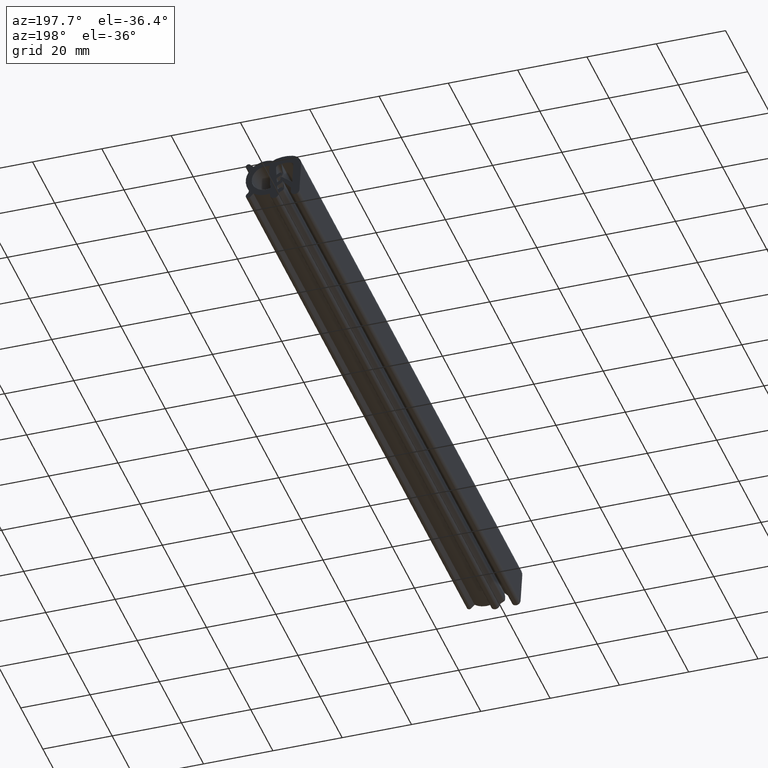
[diagram: clean part render]
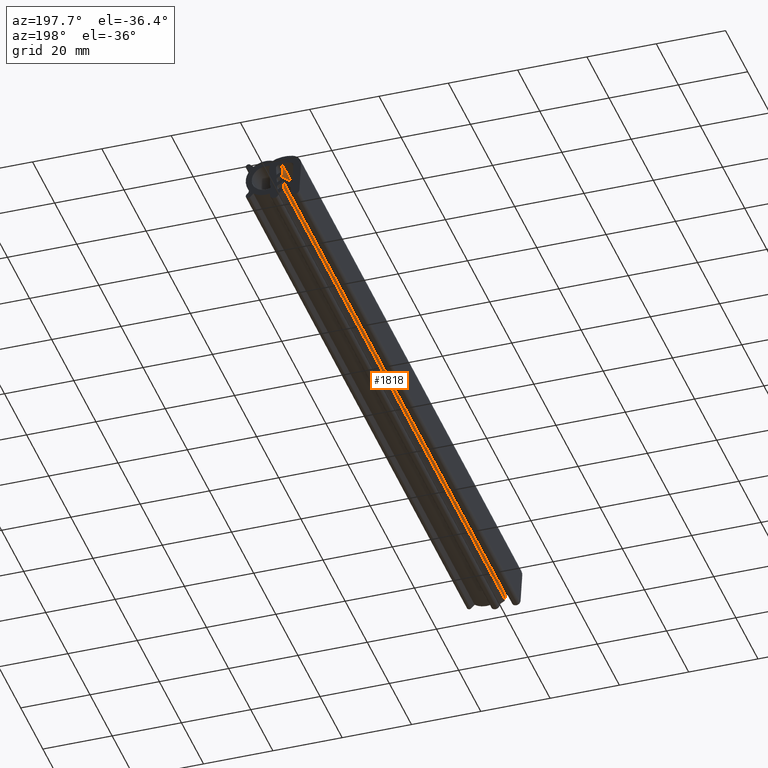
[diagram: same view with one face highlighted and labeled with its STEP entity id]
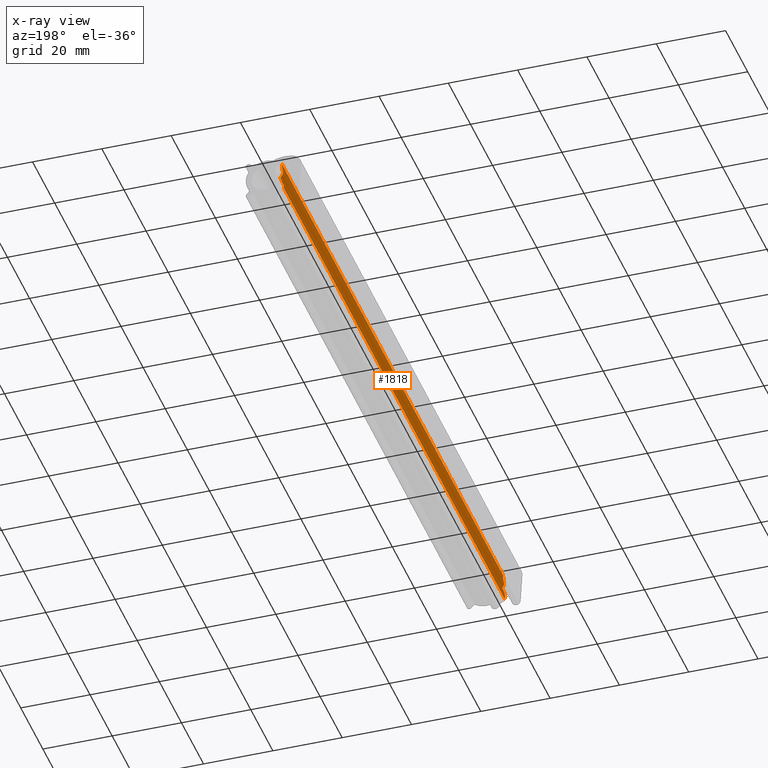
[diagram: x-ray of the same camera — body ghosted, the highlighted face saturated]
A machine part, auxiliary view. The second image highlights one B-rep face of the part: STEP entity #1818.
The next image is the same camera in x-ray: the body ghosted, the highlighted face saturated — about 0% of this face is hidden behind the body in this view.
In plain terms, the highlighted face is a freeform B-spline surface patch.
Its self-contained STEP definition (entity closure, byte-faithful):
#337=CARTESIAN_POINT('',(0.850144451564535,0.0,-2.301816466768570));
#338=VERTEX_POINT('',#337);
#352=CARTESIAN_POINT('',(0.230599169711476,0.0,-10.812679840793059));
#353=VERTEX_POINT('',#352);
#354=CARTESIAN_POINT('',(0.230599169711476,0.0,-10.812679840793059));
#355=CARTESIAN_POINT('',(0.102305031512055,0.0,-10.062404450542720));
#356=CARTESIAN_POINT('',(0.282324142546381,0.0,-9.043546452097361));
#357=CARTESIAN_POINT('',(0.558853288640762,0.0,-7.747530114465850));
#358=CARTESIAN_POINT('',(1.312969142138676,0.0,-7.523041864378371));
#359=CARTESIAN_POINT('',(1.099577878881012,0.0,-6.685757533817640));
#360=CARTESIAN_POINT('',(0.196522846896767,0.0,-5.834720515643040));
#361=CARTESIAN_POINT('',(0.800250936533021,0.0,-4.047715649766221));
#362=CARTESIAN_POINT('',(0.797134514544169,0.0,-2.894600552828700));
#363=CARTESIAN_POINT('',(0.850144451564535,0.0,-2.301816466768570));
#364=B_SPLINE_CURVE_WITH_KNOTS('',3,(#354,#355,#356,#357,#358,#359,#360,#361,#362,#363),.UNSPECIFIED.,.F.,.U.,(4,1,1,1,1,1,1,4),(0.0,0.253489397512780,0.344400312947144,0.417235516933944,0.447845485645438,0.603596963982402,0.801798481991201,1.0),.UNSPECIFIED.);
#365=EDGE_CURVE('',#353,#338,#364,.T.);
#965=CARTESIAN_POINT('',(0.230599169711476,200.0,-10.812679840793059));
#966=VERTEX_POINT('',#965);
#980=CARTESIAN_POINT('',(0.850144451564535,200.0,-2.301816466768570));
#981=VERTEX_POINT('',#980);
#982=CARTESIAN_POINT('',(0.230599169711543,199.999999999999890,-10.812679840793461));
#983=CARTESIAN_POINT('',(0.102305031512055,199.999999999999890,-10.062404450542720));
#984=CARTESIAN_POINT('',(0.282324142546381,199.999999999999890,-9.043546452097361));
#985=CARTESIAN_POINT('',(0.558853288640762,199.999999999999890,-7.747530114465850));
#986=CARTESIAN_POINT('',(1.312969142138676,199.999999999999890,-7.523041864378371));
#987=CARTESIAN_POINT('',(1.099577878881012,199.999999999999890,-6.685757533817640));
#988=CARTESIAN_POINT('',(0.196522846896767,199.999999999999890,-5.834720515643040));
#989=CARTESIAN_POINT('',(0.800250936533021,199.999999999999890,-4.047715649766221));
#990=CARTESIAN_POINT('',(0.797134514544169,199.999999999999890,-2.894600552828700));
#991=CARTESIAN_POINT('',(0.850144451564535,199.999999999999890,-2.301816466768570));
#992=B_SPLINE_CURVE_WITH_KNOTS('',3,(#982,#983,#984,#985,#986,#987,#988,#989,#990,#991),.UNSPECIFIED.,.F.,.U.,(4,1,1,1,1,1,1,4),(0.0,0.253489397512780,0.344400312947144,0.417235516933944,0.447845485645438,0.603596963982402,0.801798481991201,1.0),.UNSPECIFIED.);
#993=EDGE_CURVE('',#966,#981,#992,.T.);
#1779=CARTESIAN_POINT('',(0.850144451564535,200.0,-2.301816466768570));
#1780=CARTESIAN_POINT('',(0.850144451564535,0.0,-2.301816466768570));
#1781=QUASI_UNIFORM_CURVE('',1,(#1779,#1780),.UNSPECIFIED.,.F.,.U.);
#1782=EDGE_CURVE('',#981,#338,#1781,.T.);
#1787=CARTESIAN_POINT('',(0.230599169711543,199.999999999999890,-10.812679840793461));
#1788=CARTESIAN_POINT('',(0.102305031512055,199.999999999999890,-10.062404450542720));
#1789=CARTESIAN_POINT('',(0.282324142546381,199.999999999999890,-9.043546452097361));
#1790=CARTESIAN_POINT('',(0.558853288640762,199.999999999999890,-7.747530114465850));
#1791=CARTESIAN_POINT('',(1.312969142138676,199.999999999999890,-7.523041864378371));
#1792=CARTESIAN_POINT('',(1.099577878881012,199.999999999999890,-6.685757533817640));
#1793=CARTESIAN_POINT('',(0.196522846896767,199.999999999999890,-5.834720515643040));
#1794=CARTESIAN_POINT('',(0.800250936533021,199.999999999999890,-4.047715649766221));
#1795=CARTESIAN_POINT('',(0.797134514544169,199.999999999999890,-2.894600552828700));
#1796=CARTESIAN_POINT('',(0.850144451564535,199.999999999999890,-2.301816466768570));
#1797=CARTESIAN_POINT('',(0.230599169711543,0.0,-10.812679840793461));
#1798=CARTESIAN_POINT('',(0.102305031512055,0.0,-10.062404450542720));
#1799=CARTESIAN_POINT('',(0.282324142546381,0.0,-9.043546452097361));
#1800=CARTESIAN_POINT('',(0.558853288640762,0.0,-7.747530114465850));
#1801=CARTESIAN_POINT('',(1.312969142138676,0.0,-7.523041864378371));
#1802=CARTESIAN_POINT('',(1.099577878881012,0.0,-6.685757533817640));
#1803=CARTESIAN_POINT('',(0.196522846896767,0.0,-5.834720515643040));
#1804=CARTESIAN_POINT('',(0.800250936533021,0.0,-4.047715649766221));
#1805=CARTESIAN_POINT('',(0.797134514544169,0.0,-2.894600552828700));
#1806=CARTESIAN_POINT('',(0.850144451564535,0.0,-2.301816466768570));
#1807=B_SPLINE_SURFACE_WITH_KNOTS('',3,1,((#1787,#1797),(#1788,#1798),(#1789,#1799),(#1790,#1800),(#1791,#1801),(#1792,#1802),(#1793,#1803),(#1794,#1804),(#1795,#1805),(#1796,#1806)),.UNSPECIFIED.,.F.,.F.,.U.,(4,1,1,1,1,1,1,4),(2,2),(0.0,2.372854196356162,3.223849738180085,3.905642827430782,4.192175492781159,5.650128182664012,7.505445637145034,9.360763091626058),(0.0,199.999999999999890),.UNSPECIFIED.);
#1808=ORIENTED_EDGE('',*,*,#365,.T.);
#1809=ORIENTED_EDGE('',*,*,#1782,.F.);
#1810=ORIENTED_EDGE('',*,*,#993,.F.);
#1811=CARTESIAN_POINT('',(0.230599169711476,200.0,-10.812679840793059));
#1812=CARTESIAN_POINT('',(0.230599169711476,0.0,-10.812679840793059));
#1813=QUASI_UNIFORM_CURVE('',1,(#1811,#1812),.UNSPECIFIED.,.F.,.U.);
#1814=EDGE_CURVE('',#966,#353,#1813,.T.);
#1815=ORIENTED_EDGE('',*,*,#1814,.T.);
#1816=EDGE_LOOP('',(#1808,#1809,#1810,#1815));
#1817=FACE_OUTER_BOUND('',#1816,.T.);
#1818=ADVANCED_FACE('',(#1817),#1807,.F.);